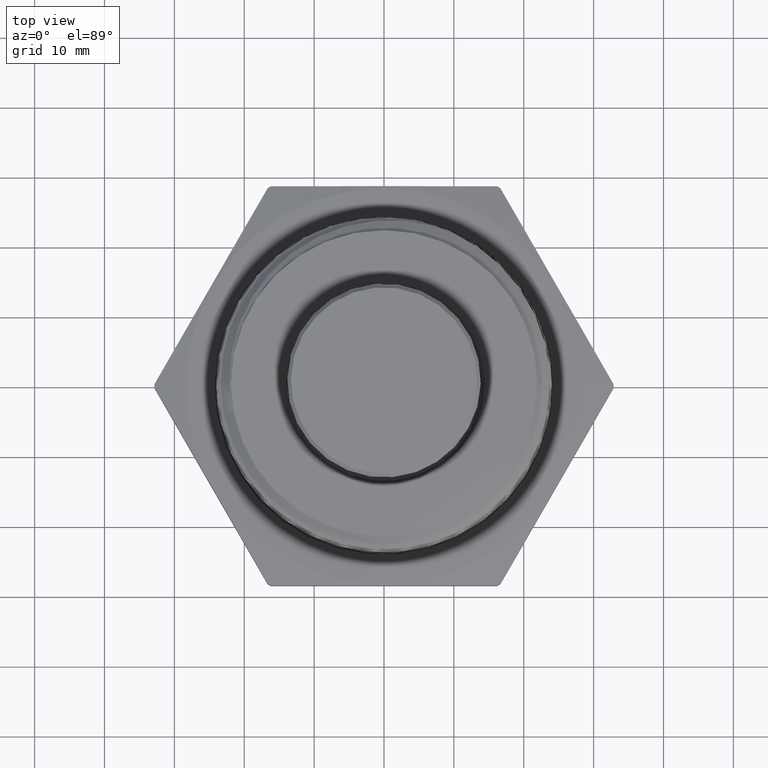
[diagram: clean part render]
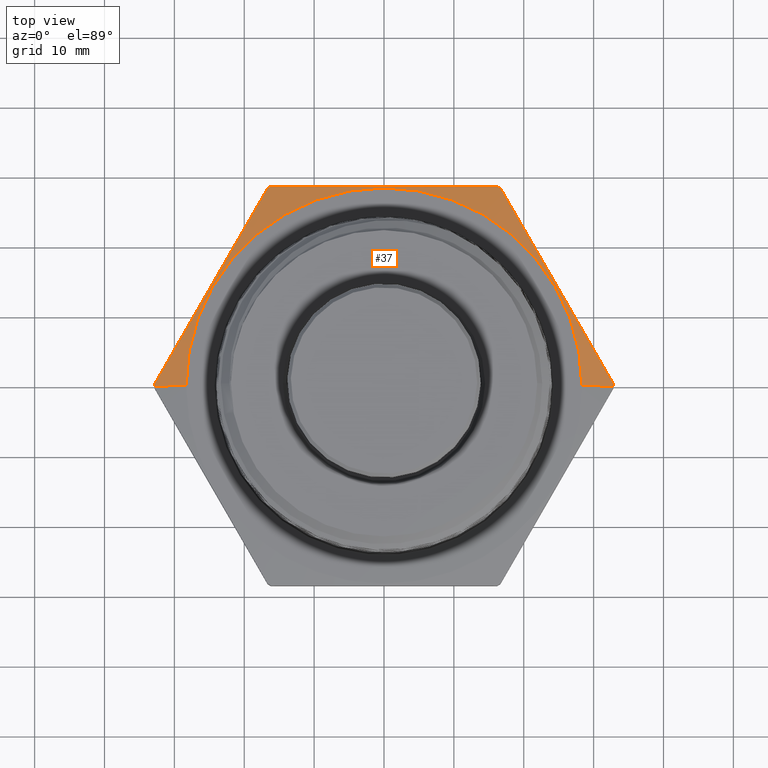
[diagram: same view with one face highlighted and labeled with its STEP entity id]
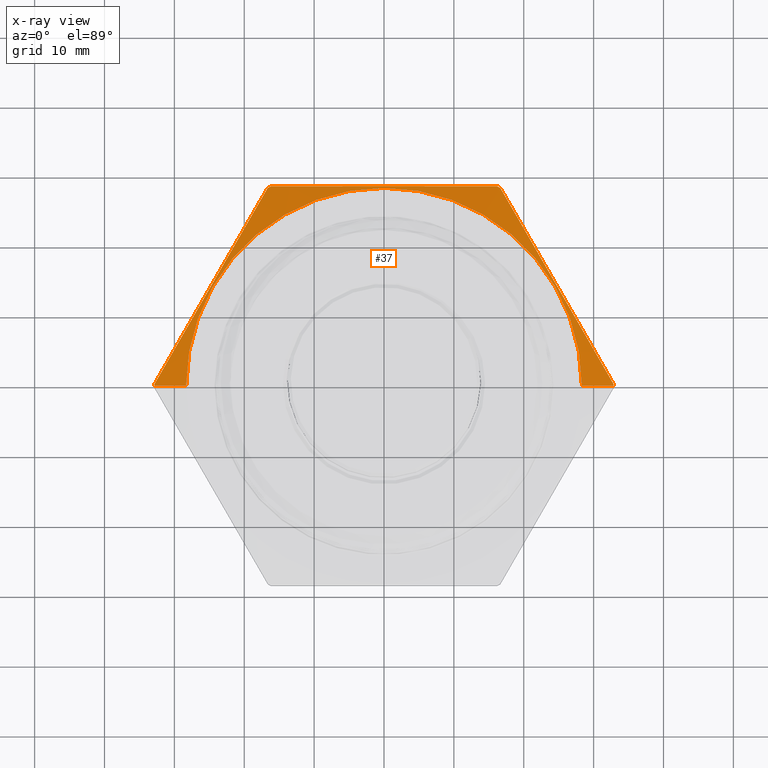
[diagram: x-ray of the same camera — body ghosted, the highlighted face saturated]
A machine part, top view. The second image highlights one B-rep face of the part: STEP entity #37.
The next image is the same camera in x-ray: the body ghosted, the highlighted face saturated — about 0% of this face is hidden behind the body in this view.
In plain terms, the highlighted conical surface has half-angle 78 deg.
Its self-contained STEP definition (entity closure, byte-faithful):
#26 = ORIENTED_EDGE ( 'NONE', *, *, #1527, .T. ) ;
#27 = ORIENTED_EDGE ( 'NONE', *, *, #1528, .T. ) ;
#29 = ORIENTED_EDGE ( 'NONE', *, *, #1529, .F. ) ;
#37 = ADVANCED_FACE ( 'NONE', ( #7729 ), #7743, .T. ) ;
#88 = AXIS2_PLACEMENT_3D ( 'NONE', #301, #302, #303 ) ;
#89 = AXIS2_PLACEMENT_3D ( 'NONE', #306, #307, #308 ) ;
#90 = AXIS2_PLACEMENT_3D ( 'NONE', #318, #319, #320 ) ;
#91 = AXIS2_PLACEMENT_3D ( 'NONE', #332, #333, #334 ) ;
#92 = AXIS2_PLACEMENT_3D ( 'NONE', #346, #347, #348 ) ;
#299 = DIRECTION ( 'NONE',  ( 0.9781476007338069100, 1.197885328332319900E-016, -0.2079116908177530700 ) ) ;
#300 = CARTESIAN_POINT ( 'NONE',  ( 1.114999999999999800, 1.365481181049298600E-016, 0.2799999999999997500 ) ) ;
#301 = CARTESIAN_POINT ( 'NONE',  ( 3.513962334266675000E-017, 0.0000000000000000000, 0.2799999999999998600 ) ) ;
#302 = DIRECTION ( 'NONE',  ( -1.254986547952384500E-016, -0.0000000000000000000, -1.000000000000000000 ) ) ;
#303 = DIRECTION ( 'NONE',  ( -1.000000000000000000, 0.0000000000000000000, 1.225043943347203600E-016 ) ) ;
#304 = CARTESIAN_POINT ( 'NONE',  ( 0.7618004646375842200, 0.9305228900181260500, 0.2623080740063898900 ) ) ;
#305 = CARTESIAN_POINT ( 'NONE',  ( 0.7086809359826067300, 1.022528612522657400, 0.2532890800781960600 ) ) ;
#306 = CARTESIAN_POINT ( 'NONE',  ( 3.039035671707238500E-017, 0.0000000000000000000, 0.2421568324111265700 ) ) ;
#307 = DIRECTION ( 'NONE',  ( -1.254986547952384500E-016, -0.0000000000000000000, -1.000000000000000000 ) ) ;
#308 = DIRECTION ( 'NONE',  ( -1.000000000000000000, 0.0000000000000000000, 1.320459921903589100E-016 ) ) ;
#309 = CARTESIAN_POINT ( 'NONE',  ( 0.6555614073276295800, 1.114534335027189000, 0.2421568324111265100 ) ) ;
#310 = CARTESIAN_POINT ( 'NONE',  ( 0.8680395219475384200, 0.7465114450090630800, 0.2746186185401573400 ) ) ;
#311 = CARTESIAN_POINT ( 'NONE',  ( 0.9742785792574930600, 0.5625000000000003300, 0.2811302502264418400 ) ) ;
#312 = CARTESIAN_POINT ( 'NONE',  ( 1.080517636567448000, 0.3784885549909375900, 0.2746186185401574000 ) ) ;
#313 = CARTESIAN_POINT ( 'NONE',  ( 1.186756693877402300, 0.1944771099818747900, 0.2623080740063898400 ) ) ;
#314 = CARTESIAN_POINT ( 'NONE',  ( 1.239876222532379400, 0.1024713874773433100, 0.2532890800781961200 ) ) ;
#315 = CARTESIAN_POINT ( 'NONE',  ( 1.292995751187356900, 0.01046566497281173000, 0.2421568324111264000 ) ) ;
#316 = CARTESIAN_POINT ( 'NONE',  ( -0.4247182803385501900, 1.124999999999999800, 0.2623289654415552600 ) ) ;
#317 = CARTESIAN_POINT ( 'NONE',  ( -0.5312776202941615900, 1.125000000000000200, 0.2532804527460539300 ) ) ;
#318 = CARTESIAN_POINT ( 'NONE',  ( 3.039035671707238500E-017, 0.0000000000000000000, 0.2421568324111265700 ) ) ;
#319 = DIRECTION ( 'NONE',  ( -1.254986547952384500E-016, -0.0000000000000000000, -1.000000000000000000 ) ) ;
#320 = DIRECTION ( 'NONE',  ( -1.000000000000000000, 0.0000000000000000000, 1.320459921903589100E-016 ) ) ;
#321 = CARTESIAN_POINT ( 'NONE',  ( -0.6374343438597268600, 1.124999999999999800, 0.2421568324111266500 ) ) ;
#322 = CARTESIAN_POINT ( 'NONE',  ( -0.2119210197563298200, 1.124999999999999800, 0.2746437637095195900 ) ) ;
#323 = CARTESIAN_POINT ( 'NONE',  ( -0.1055877381477448400, 1.124999999999999800, 0.2778878926551205900 ) ) ;
#324 = CARTESIAN_POINT ( 'NONE',  ( 0.1069326787727587200, 1.125000000000000200, 0.2778608906701119900 ) ) ;
#325 = CARTESIAN_POINT ( 'NONE',  ( 0.2131198371923392600, 1.125000000000000200, 0.2745907898882507000 ) ) ;
#326 = CARTESIAN_POINT ( 'NONE',  ( 0.4253645999510996000, 1.125000000000000000, 0.2622750160309168500 ) ) ;
#327 = CARTESIAN_POINT ( 'NONE',  ( 0.5314230090217716400, 1.124999999999999800, 0.2532652182045890300 ) ) ;
#328 = CARTESIAN_POINT ( 'NONE',  ( 0.6374343438597268600, 1.124999999999999800, 0.2421568324111265100 ) ) ;
#329 = CARTESIAN_POINT ( 'NONE',  ( -1.186756693877402300, 0.1944771099818747900, 0.2623080740063900600 ) ) ;
#330 = CARTESIAN_POINT ( 'NONE',  ( -1.239876222532379800, 0.1024713874773435400, 0.2532890800781963400 ) ) ;
#332 = CARTESIAN_POINT ( 'NONE',  ( 3.039035671707238500E-017, 0.0000000000000000000, 0.2421568324111265700 ) ) ;
#333 = DIRECTION ( 'NONE',  ( -1.254986547952384500E-016, -0.0000000000000000000, -1.000000000000000000 ) ) ;
#334 = DIRECTION ( 'NONE',  ( -1.000000000000000000, 0.0000000000000000000, 1.320459921903589100E-016 ) ) ;
#335 = CARTESIAN_POINT ( 'NONE',  ( -1.292995751187356900, 0.01046566497281227600, 0.2421568324111267600 ) ) ;
#336 = CARTESIAN_POINT ( 'NONE',  ( -1.080517636567447800, 0.3784885549909373600, 0.2746186185401575700 ) ) ;
#337 = CARTESIAN_POINT ( 'NONE',  ( -0.9742785792574937300, 0.5625000000000001100, 0.2811302502264421100 ) ) ;
#338 = CARTESIAN_POINT ( 'NONE',  ( -0.8680395219475395300, 0.7465114450090629700, 0.2746186185401575700 ) ) ;
#339 = CARTESIAN_POINT ( 'NONE',  ( -0.7618004646375847700, 0.9305228900181256000, 0.2623080740063900000 ) ) ;
#340 = CARTESIAN_POINT ( 'NONE',  ( -0.7086809359826077300, 1.022528612522656500, 0.2532890800781962800 ) ) ;
#341 = CARTESIAN_POINT ( 'NONE',  ( -0.6555614073276306900, 1.114534335027188100, 0.2421568324111266500 ) ) ;
#346 = CARTESIAN_POINT ( 'NONE',  ( 3.039035671707238500E-017, 0.0000000000000000000, 0.2421568324111265700 ) ) ;
#347 = DIRECTION ( 'NONE',  ( -1.254986547952384500E-016, -0.0000000000000000000, -1.000000000000000000 ) ) ;
#348 = DIRECTION ( 'NONE',  ( -1.000000000000000000, 0.0000000000000000000, 1.320459921903589100E-016 ) ) ;
#378 = CARTESIAN_POINT ( 'NONE',  ( -1.293038105676658000, 0.0000000000000000000, 0.2421568324111267600 ) ) ;
#384 = CARTESIAN_POINT ( 'NONE',  ( 0.6374343438597268600, 1.124999999999999800, 0.2421568324111265100 ) ) ;
#385 = CARTESIAN_POINT ( 'NONE',  ( 1.114999999999999800, 1.365481181049298600E-016, 0.2799999999999997500 ) ) ;
#399 = CARTESIAN_POINT ( 'NONE',  ( 0.6555614073276295800, 1.114534335027189000, 0.2421568324111265100 ) ) ;
#403 = CARTESIAN_POINT ( 'NONE',  ( -0.6374343438597268600, 1.124999999999999800, 0.2421568324111266500 ) ) ;
#802 = CARTESIAN_POINT ( 'NONE',  ( -1.114999999999999800, 0.0000000000000000000, 0.2800000000000000300 ) ) ;
#804 = DIRECTION ( 'NONE',  ( -0.9781476007338069100, 0.0000000000000000000, -0.2079116908177528500 ) ) ;
#1269 = CARTESIAN_POINT ( 'NONE',  ( 1.293038105676658000, 1.583514977292476400E-016, 0.2421568324111264000 ) ) ;
#1333 = CARTESIAN_POINT ( 'NONE',  ( 1.292995751187356900, 0.01046566497281173000, 0.2421568324111264000 ) ) ;
#1334 = CARTESIAN_POINT ( 'NONE',  ( -1.292995751187356900, 0.01046566497281227600, 0.2421568324111267600 ) ) ;
#1338 = CARTESIAN_POINT ( 'NONE',  ( -1.114999999999999800, 0.0000000000000000000, 0.2800000000000000300 ) ) ;
#1343 = CARTESIAN_POINT ( 'NONE',  ( -0.6555614073276306900, 1.114534335027188100, 0.2421568324111266500 ) ) ;
#1527 = EDGE_CURVE ( 'NONE', #5842, #2184, #7522, .T. ) ;
#1528 = EDGE_CURVE ( 'NONE', #2184, #5836, #7523, .T. ) ;
#1529 = EDGE_CURVE ( 'NONE', #5837, #5836, #7528, .T. ) ;
#1530 = EDGE_CURVE ( 'NONE', #2198, #5837, #2335, .T. ) ;
#1531 = EDGE_CURVE ( 'NONE', #2183, #2198, #7530, .T. ) ;
#1532 = EDGE_CURVE ( 'NONE', #2202, #2183, #2333, .T. ) ;
#1533 = EDGE_CURVE ( 'NONE', #5848, #2202, #7532, .T. ) ;
#1534 = EDGE_CURVE ( 'NONE', #5838, #5848, #2332, .T. ) ;
#1535 = EDGE_CURVE ( 'NONE', #2177, #5838, #7527, .T. ) ;
#1542 = AXIS2_PLACEMENT_3D ( 'NONE', #6872, #6873, #6871 ) ;
#1873 = ORIENTED_EDGE ( 'NONE', *, *, #1533, .F. ) ;
#1881 = ORIENTED_EDGE ( 'NONE', *, *, #1530, .F. ) ;
#2177 = VERTEX_POINT ( 'NONE', #378 ) ;
#2183 = VERTEX_POINT ( 'NONE', #384 ) ;
#2184 = VERTEX_POINT ( 'NONE', #385 ) ;
#2198 = VERTEX_POINT ( 'NONE', #399 ) ;
#2202 = VERTEX_POINT ( 'NONE', #403 ) ;
#2332 = B_SPLINE_CURVE_WITH_KNOTS ( 'NONE', 3,
 ( #335, #330, #329, #336, #337, #338, #339, #340, #341 ),
 .UNSPECIFIED., .F., .F.,
 ( 4, 2, 1, 2, 4 ),
 ( 1.908587031568417900E-006, 0.008097324754050084000, 0.01619274092106860000, 0.02428815708808712200, 0.03238357325510565100 ),
 .UNSPECIFIED. ) ;
#2333 = B_SPLINE_CURVE_WITH_KNOTS ( 'NONE', 3,
 ( #321, #317, #316, #322, #323, #324, #325, #326, #327, #328 ),
 .UNSPECIFIED., .F., .F.,
 ( 4, 2, 2, 2, 4 ),
 ( 0.02769100706627819800, 0.03581872669892852100, 0.04394644633157883400, 0.05207416596422916000, 0.06020188559687948700 ),
 .UNSPECIFIED. ) ;
#2335 = B_SPLINE_CURVE_WITH_KNOTS ( 'NONE', 3,
 ( #309, #305, #304, #310, #311, #312, #313, #314, #315 ),
 .UNSPECIFIED., .F., .F.,
 ( 4, 2, 1, 2, 4 ),
 ( 1.908587031458644900E-006, 0.008097324754049988600, 0.01619274092106852100, 0.02428815708808704900, 0.03238357325510558100 ),
 .UNSPECIFIED. ) ;
#5748 = EDGE_CURVE ( 'NONE', #5842, #2177, #7553, .T. ) ;
#5836 = VERTEX_POINT ( 'NONE', #1269 ) ;
#5837 = VERTEX_POINT ( 'NONE', #1333 ) ;
#5838 = VERTEX_POINT ( 'NONE', #1334 ) ;
#5842 = VERTEX_POINT ( 'NONE', #1338 ) ;
#5848 = VERTEX_POINT ( 'NONE', #1343 ) ;
#6871 = DIRECTION ( 'NONE',  ( -1.000000000000000000, 0.0000000000000000000, 1.225043943347203600E-016 ) ) ;
#6872 = CARTESIAN_POINT ( 'NONE',  ( 3.513962334266675000E-017, 0.0000000000000000000, 0.2799999999999998600 ) ) ;
#6873 = DIRECTION ( 'NONE',  ( -1.254986547952384500E-016, -0.0000000000000000000, -1.000000000000000000 ) ) ;
#7522 = CIRCLE ( 'NONE', #88, 1.114999999999999800 ) ;
#7523 = LINE ( 'NONE', #300, #7529 ) ;
#7527 = CIRCLE ( 'NONE', #92, 1.293038105676658000 ) ;
#7528 = CIRCLE ( 'NONE', #89, 1.293038105676658000 ) ;
#7529 = VECTOR ( 'NONE', #299, 39.37007874015748100 ) ;
#7530 = CIRCLE ( 'NONE', #90, 1.293038105676658000 ) ;
#7532 = CIRCLE ( 'NONE', #91, 1.293038105676658000 ) ;
#7553 = LINE ( 'NONE', #802, #7562 ) ;
#7562 = VECTOR ( 'NONE', #804, 39.37007874015748100 ) ;
#7729 = FACE_OUTER_BOUND ( 'NONE', #7817, .T. ) ;
#7743 = CONICAL_SURFACE ( 'NONE', #1542, 1.114999999999999800, 1.361356816555583600 ) ;
#7817 = EDGE_LOOP ( 'NONE', ( #26, #27, #29, #1881, #8105, #8106, #1873, #7941, #7943, #7942 ) ) ;
#7941 = ORIENTED_EDGE ( 'NONE', *, *, #1534, .F. ) ;
#7942 = ORIENTED_EDGE ( 'NONE', *, *, #5748, .F. ) ;
#7943 = ORIENTED_EDGE ( 'NONE', *, *, #1535, .F. ) ;
#8105 = ORIENTED_EDGE ( 'NONE', *, *, #1531, .F. ) ;
#8106 = ORIENTED_EDGE ( 'NONE', *, *, #1532, .F. ) ;